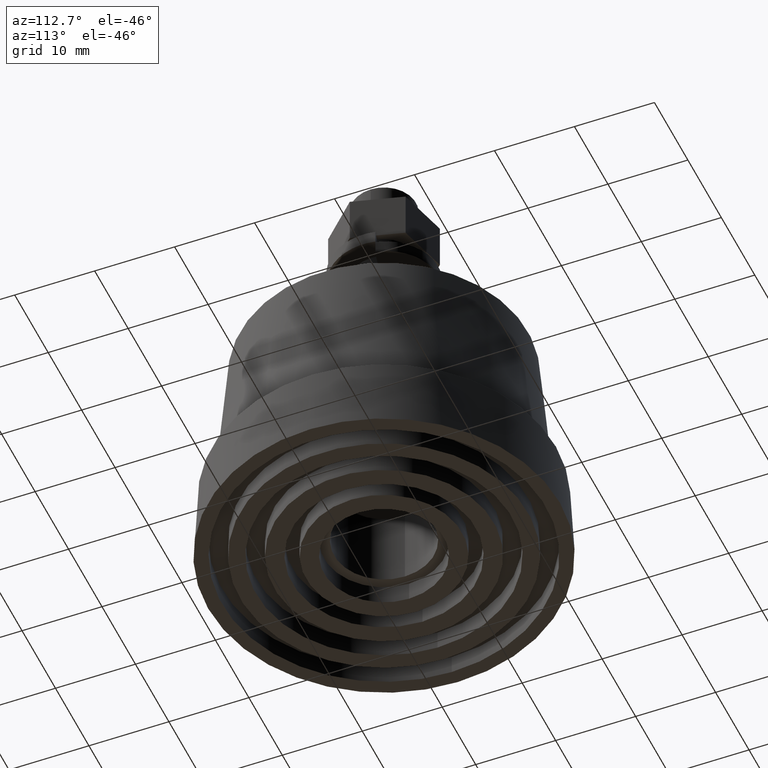
[diagram: clean part render]
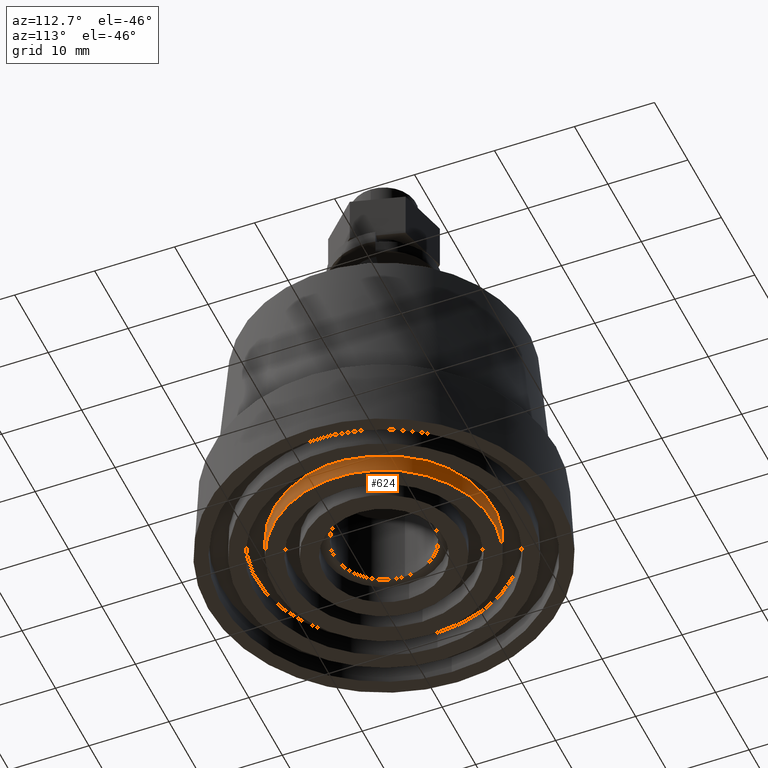
[diagram: same view with one face highlighted and labeled with its STEP entity id]
A machine part, auxiliary view. The second image highlights one B-rep face of the part: STEP entity #624.
In plain terms, the highlighted cylindrical surface (bore or boss wall) has radius 13.75 mm, axis along (0, 0, -1).
Its self-contained STEP definition (entity closure, byte-faithful):
#143=FACE_BOUND('',#251,.T.);
#181=FACE_OUTER_BOUND('',#250,.T.);
#250=EDGE_LOOP('',(#494));
#251=EDGE_LOOP('',(#495));
#320=CIRCLE('',#702,13.75);
#321=CIRCLE('',#704,13.75);
#356=VERTEX_POINT('',#1025);
#357=VERTEX_POINT('',#1028);
#412=EDGE_CURVE('',#356,#356,#320,.T.);
#413=EDGE_CURVE('',#357,#357,#321,.T.);
#494=ORIENTED_EDGE('',*,*,#413,.F.);
#495=ORIENTED_EDGE('',*,*,#412,.T.);
#597=CYLINDRICAL_SURFACE('',#703,13.75);
#624=ADVANCED_FACE('',(#181,#143),#597,.T.);
#702=AXIS2_PLACEMENT_3D('',#1026,#839,#840);
#703=AXIS2_PLACEMENT_3D('',#1027,#841,#842);
#704=AXIS2_PLACEMENT_3D('',#1029,#843,#844);
#839=DIRECTION('center_axis',(0.,0.,-1.));
#840=DIRECTION('ref_axis',(1.,0.,0.));
#841=DIRECTION('center_axis',(0.,0.,-1.));
#842=DIRECTION('ref_axis',(1.,0.,0.));
#843=DIRECTION('center_axis',(0.,0.,-1.));
#844=DIRECTION('ref_axis',(1.,0.,0.));
#1025=CARTESIAN_POINT('',(-13.75,1.68388934882761E-15,2.5));
#1026=CARTESIAN_POINT('Origin',(0.,0.,2.5));
#1027=CARTESIAN_POINT('Origin',(0.,0.,69.0796641566822));
#1028=CARTESIAN_POINT('',(-13.75,-1.68388934882761E-15,0.));
#1029=CARTESIAN_POINT('Origin',(0.,0.,0.));